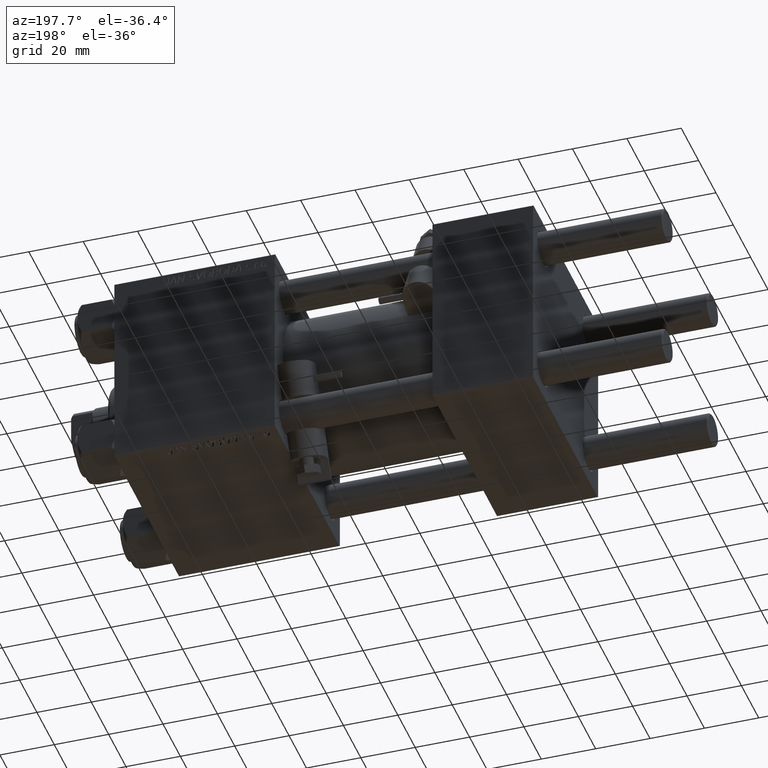
[diagram: clean part render]
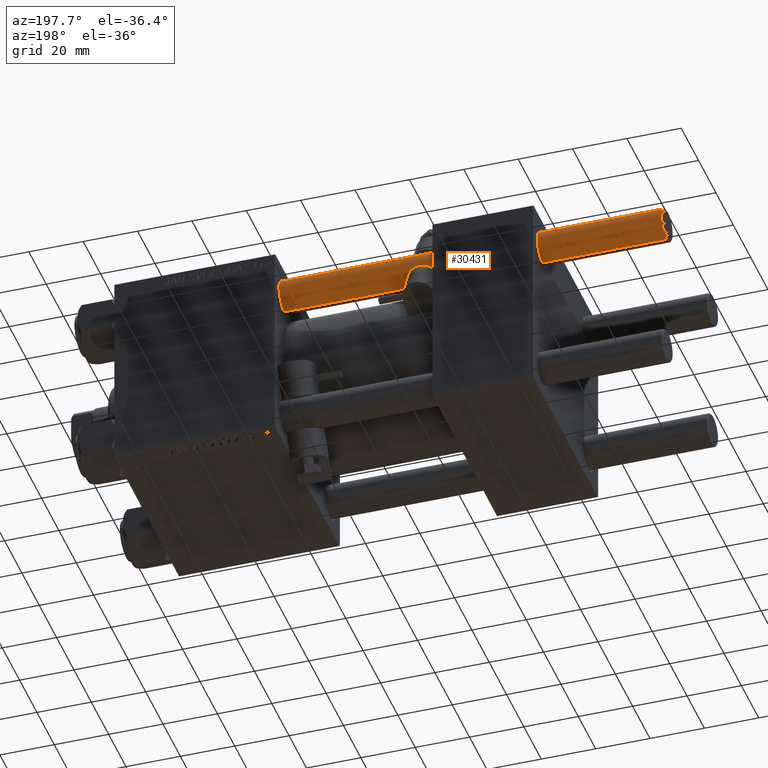
[diagram: same view with one face highlighted and labeled with its STEP entity id]
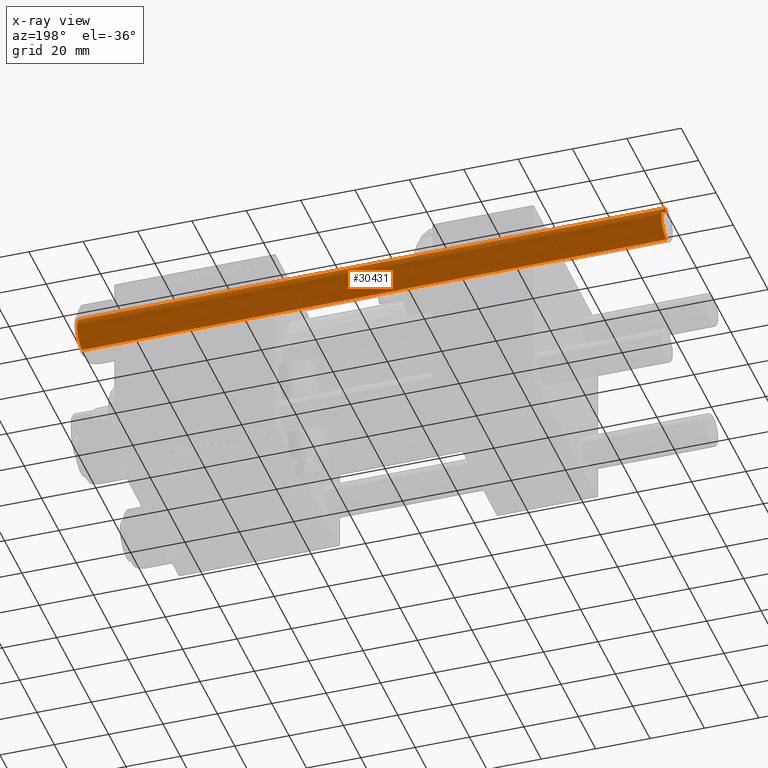
[diagram: x-ray of the same camera — body ghosted, the highlighted face saturated]
A machine part, auxiliary view. The second image highlights one B-rep face of the part: STEP entity #30431.
The next image is the same camera in x-ray: the body ghosted, the highlighted face saturated — about 0% of this face is hidden behind the body in this view.
In plain terms, the highlighted cylindrical surface (edge-blend (fillet) strip) has radius 6 mm, axis along (-1, -0, -0).
Its self-contained STEP definition (entity closure, byte-faithful):
#146 = AXIS2_PLACEMENT_3D ( 'NONE', #14241, #26548, #26293 ) ;
#5891 = AXIS2_PLACEMENT_3D ( 'NONE', #35718, #7991, #16453 ) ;
#6496 = CARTESIAN_POINT ( 'NONE',  ( 6.000000000000000888, 7.347880794884120722E-16, 215.5000000000000284 ) ) ;
#7991 = DIRECTION ( 'NONE',  ( -0.000000000000000000, -0.000000000000000000, -1.000000000000000000 ) ) ;
#11459 = VERTEX_POINT ( 'NONE', #25367 ) ;
#14241 = CARTESIAN_POINT ( 'NONE',  ( 0.000000000000000000, 0.000000000000000000, 215.5000000000000284 ) ) ;
#14285 = DIRECTION ( 'NONE',  ( -0.000000000000000000, -0.000000000000000000, -1.000000000000000000 ) ) ;
#14789 = LINE ( 'NONE', #38402, #29316 ) ;
#16338 = CARTESIAN_POINT ( 'NONE',  ( 0.000000000000000000, 0.000000000000000000, 0.5000000000000004441 ) ) ;
#16453 = DIRECTION ( 'NONE',  ( -1.000000000000000000, 0.000000000000000000, 0.000000000000000000 ) ) ;
#16549 = CIRCLE ( 'NONE', #146, 6.000000000000000888 ) ;
#16584 = CARTESIAN_POINT ( 'NONE',  ( -6.000000000000000888, 0.000000000000000000, 216.0000000000000000 ) ) ;
#18199 = VECTOR ( 'NONE', #40711, 1000.000000000000000 ) ;
#18344 = ORIENTED_EDGE ( 'NONE', *, *, #49697, .T. ) ;
#20151 = VERTEX_POINT ( 'NONE', #6496 ) ;
#20438 = DIRECTION ( 'NONE',  ( -0.000000000000000000, -0.000000000000000000, 1.000000000000000000 ) ) ;
#24212 = VERTEX_POINT ( 'NONE', #32267 ) ;
#25367 = CARTESIAN_POINT ( 'NONE',  ( -6.000000000000000888, 0.000000000000000000, 0.5000000000000004441 ) ) ;
#25979 = EDGE_LOOP ( 'NONE', ( #49470, #28315, #18344, #27445 ) ) ;
#26095 = CIRCLE ( 'NONE', #40834, 6.000000000000000888 ) ;
#26293 = DIRECTION ( 'NONE',  ( 1.000000000000000000, 0.000000000000000000, 0.000000000000000000 ) ) ;
#26548 = DIRECTION ( 'NONE',  ( 0.000000000000000000, 0.000000000000000000, -1.000000000000000000 ) ) ;
#27445 = ORIENTED_EDGE ( 'NONE', *, *, #31008, .F. ) ;
#28315 = ORIENTED_EDGE ( 'NONE', *, *, #48481, .T. ) ;
#29316 = VECTOR ( 'NONE', #14285, 1000.000000000000000 ) ;
#30198 = VERTEX_POINT ( 'NONE', #47669 ) ;
#30310 = EDGE_CURVE ( 'NONE', #24212, #20151, #16549, .T. ) ;
#30431 = ADVANCED_FACE ( 'NONE', ( #46337 ), #39828, .T. ) ;
#31008 = EDGE_CURVE ( 'NONE', #24212, #11459, #37360, .T. ) ;
#32267 = CARTESIAN_POINT ( 'NONE',  ( -6.000000000000000888, 0.000000000000000000, 215.5000000000000284 ) ) ;
#35718 = CARTESIAN_POINT ( 'NONE',  ( 0.000000000000000000, 0.000000000000000000, 216.0000000000000000 ) ) ;
#37360 = LINE ( 'NONE', #16584, #18199 ) ;
#38402 = CARTESIAN_POINT ( 'NONE',  ( 6.000000000000000888, 7.347880794884120722E-16, 216.0000000000000000 ) ) ;
#39828 = CYLINDRICAL_SURFACE ( 'NONE', #5891, 6.000000000000000888 ) ;
#40711 = DIRECTION ( 'NONE',  ( -0.000000000000000000, -0.000000000000000000, -1.000000000000000000 ) ) ;
#40716 = DIRECTION ( 'NONE',  ( 1.000000000000000000, 0.000000000000000000, 0.000000000000000000 ) ) ;
#40834 = AXIS2_PLACEMENT_3D ( 'NONE', #16338, #20438, #40716 ) ;
#46337 = FACE_OUTER_BOUND ( 'NONE', #25979, .T. ) ;
#47669 = CARTESIAN_POINT ( 'NONE',  ( 6.000000000000000888, 7.347880794884120722E-16, 0.5000000000000004441 ) ) ;
#48481 = EDGE_CURVE ( 'NONE', #20151, #30198, #14789, .T. ) ;
#49470 = ORIENTED_EDGE ( 'NONE', *, *, #30310, .T. ) ;
#49697 = EDGE_CURVE ( 'NONE', #30198, #11459, #26095, .T. ) ;